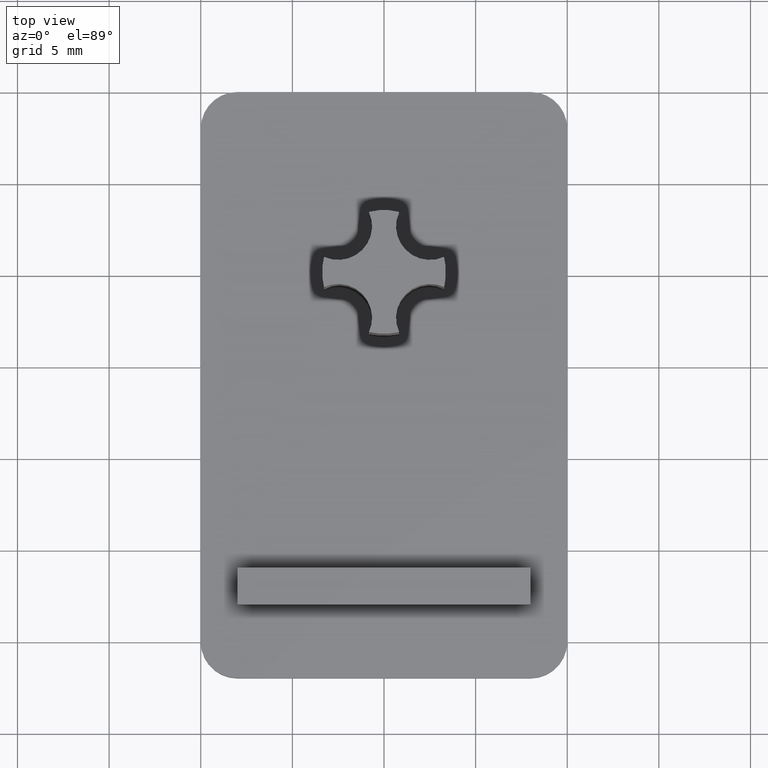
[diagram: clean part render]
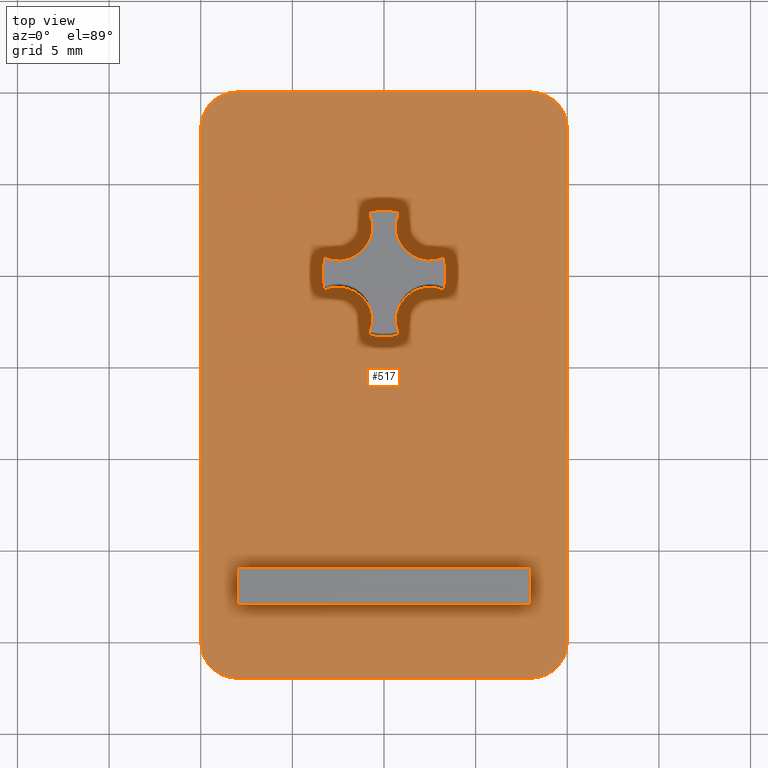
[diagram: same view with one face highlighted and labeled with its STEP entity id]
A machine part, top view. The second image highlights one B-rep face of the part: STEP entity #517.
In plain terms, the highlighted planar face has unit normal (0, 0, 1).
Its self-contained STEP definition (entity closure, byte-faithful):
#14=FACE_BOUND('',#95,.T.);
#15=FACE_BOUND('',#96,.T.);
#16=FACE_BOUND('',#97,.T.);
#28=PLANE('',#584);
#95=EDGE_LOOP('',(#450,#451,#452,#453));
#96=EDGE_LOOP('',(#454,#455,#456,#457,#458,#459,#460,#461));
#97=EDGE_LOOP('',(#462,#463,#464,#465,#466,#467,#468,#469));
#109=LINE('',#805,#149);
#112=LINE('',#813,#152);
#113=LINE('',#818,#153);
#117=LINE('',#826,#157);
#120=LINE('',#832,#160);
#123=LINE('',#837,#163);
#133=LINE('',#891,#173);
#136=LINE('',#899,#176);
#149=VECTOR('',#644,16.);
#152=VECTOR('',#653,28.);
#153=VECTOR('',#658,2.);
#157=VECTOR('',#664,16.);
#160=VECTOR('',#669,2.);
#163=VECTOR('',#674,16.);
#173=VECTOR('',#738,28.);
#176=VECTOR('',#747,16.);
#190=CIRCLE('',#542,2.);
#191=CIRCLE('',#545,2.);
#192=CIRCLE('',#554,3.37499999999998);
#194=CIRCLE('',#557,1.85);
#196=CIRCLE('',#560,3.375);
#198=CIRCLE('',#563,1.85);
#200=CIRCLE('',#566,1.85);
#202=CIRCLE('',#569,3.375);
#204=CIRCLE('',#572,1.85);
#206=CIRCLE('',#575,3.375);
#208=CIRCLE('',#580,2.);
#209=CIRCLE('',#583,2.);
#222=VERTEX_POINT('',#797);
#223=VERTEX_POINT('',#799);
#224=VERTEX_POINT('',#803);
#225=VERTEX_POINT('',#807);
#226=VERTEX_POINT('',#811);
#227=VERTEX_POINT('',#816);
#228=VERTEX_POINT('',#817);
#231=VERTEX_POINT('',#825);
#233=VERTEX_POINT('',#831);
#235=VERTEX_POINT('',#841);
#236=VERTEX_POINT('',#842);
#239=VERTEX_POINT('',#850);
#241=VERTEX_POINT('',#856);
#243=VERTEX_POINT('',#862);
#245=VERTEX_POINT('',#868);
#247=VERTEX_POINT('',#874);
#249=VERTEX_POINT('',#880);
#251=VERTEX_POINT('',#890);
#252=VERTEX_POINT('',#894);
#253=VERTEX_POINT('',#898);
#275=EDGE_CURVE('',#223,#222,#190,.T.);
#278=EDGE_CURVE('',#222,#224,#109,.T.);
#280=EDGE_CURVE('',#224,#225,#191,.T.);
#282=EDGE_CURVE('',#225,#226,#112,.T.);
#283=EDGE_CURVE('',#227,#228,#113,.T.);
#287=EDGE_CURVE('',#228,#231,#117,.T.);
#290=EDGE_CURVE('',#231,#233,#120,.T.);
#293=EDGE_CURVE('',#233,#227,#123,.T.);
#295=EDGE_CURVE('',#235,#236,#192,.T.);
#299=EDGE_CURVE('',#239,#235,#194,.T.);
#302=EDGE_CURVE('',#241,#239,#196,.T.);
#305=EDGE_CURVE('',#243,#241,#198,.T.);
#308=EDGE_CURVE('',#236,#245,#200,.T.);
#311=EDGE_CURVE('',#245,#247,#202,.T.);
#314=EDGE_CURVE('',#247,#249,#204,.T.);
#317=EDGE_CURVE('',#249,#243,#206,.T.);
#319=EDGE_CURVE('',#251,#223,#133,.T.);
#321=EDGE_CURVE('',#252,#251,#208,.T.);
#323=EDGE_CURVE('',#253,#252,#136,.T.);
#325=EDGE_CURVE('',#226,#253,#209,.T.);
#450=ORIENTED_EDGE('',*,*,#283,.T.);
#451=ORIENTED_EDGE('',*,*,#287,.T.);
#452=ORIENTED_EDGE('',*,*,#290,.T.);
#453=ORIENTED_EDGE('',*,*,#293,.T.);
#454=ORIENTED_EDGE('',*,*,#305,.T.);
#455=ORIENTED_EDGE('',*,*,#302,.T.);
#456=ORIENTED_EDGE('',*,*,#299,.T.);
#457=ORIENTED_EDGE('',*,*,#295,.T.);
#458=ORIENTED_EDGE('',*,*,#308,.T.);
#459=ORIENTED_EDGE('',*,*,#311,.T.);
#460=ORIENTED_EDGE('',*,*,#314,.T.);
#461=ORIENTED_EDGE('',*,*,#317,.T.);
#462=ORIENTED_EDGE('',*,*,#280,.T.);
#463=ORIENTED_EDGE('',*,*,#282,.T.);
#464=ORIENTED_EDGE('',*,*,#325,.T.);
#465=ORIENTED_EDGE('',*,*,#323,.T.);
#466=ORIENTED_EDGE('',*,*,#321,.T.);
#467=ORIENTED_EDGE('',*,*,#319,.T.);
#468=ORIENTED_EDGE('',*,*,#275,.T.);
#469=ORIENTED_EDGE('',*,*,#278,.T.);
#517=ADVANCED_FACE('',(#14,#15,#16),#28,.T.);
#542=AXIS2_PLACEMENT_3D('',#800,#638,#639);
#545=AXIS2_PLACEMENT_3D('',#809,#648,#649);
#554=AXIS2_PLACEMENT_3D('',#843,#680,#681);
#557=AXIS2_PLACEMENT_3D('',#851,#688,#689);
#560=AXIS2_PLACEMENT_3D('',#857,#695,#696);
#563=AXIS2_PLACEMENT_3D('',#863,#702,#703);
#566=AXIS2_PLACEMENT_3D('',#869,#709,#710);
#569=AXIS2_PLACEMENT_3D('',#875,#716,#717);
#572=AXIS2_PLACEMENT_3D('',#881,#723,#724);
#575=AXIS2_PLACEMENT_3D('',#886,#730,#731);
#580=AXIS2_PLACEMENT_3D('',#895,#742,#743);
#583=AXIS2_PLACEMENT_3D('',#902,#751,#752);
#584=AXIS2_PLACEMENT_3D('',#903,#753,#754);
#638=DIRECTION('center_axis',(0.,0.,1.));
#639=DIRECTION('ref_axis',(-1.,2.22044604925031E-015,0.));
#644=DIRECTION('',(1.,-1.38777878078145E-015,0.));
#648=DIRECTION('center_axis',(0.,0.,1.));
#649=DIRECTION('ref_axis',(-4.9960036108132E-015,-1.,0.));
#653=DIRECTION('',(1.26882631385732E-015,1.,0.));
#658=DIRECTION('',(0.,-1.,0.));
#664=DIRECTION('',(-1.,0.,0.));
#669=DIRECTION('',(-5.55111512312578E-016,1.,0.));
#674=DIRECTION('',(1.,0.,0.));
#680=DIRECTION('center_axis',(0.,0.,-1.));
#681=DIRECTION('ref_axis',(-0.243072963343275,-0.970008007436804,0.));
#688=DIRECTION('center_axis',(0.,0.,1.));
#689=DIRECTION('ref_axis',(-0.417478489460647,-0.908686805691409,0.));
#695=DIRECTION('center_axis',(0.,0.,-1.));
#696=DIRECTION('ref_axis',(0.970008008755765,-0.243072958079824,0.));
#702=DIRECTION('center_axis',(0.,0.,1.));
#703=DIRECTION('ref_axis',(0.908686805691408,-0.417478489460648,0.));
#709=DIRECTION('center_axis',(0.,0.,1.));
#710=DIRECTION('ref_axis',(-0.908686815897392,0.417478467246227,0.));
#716=DIRECTION('center_axis',(0.,0.,-1.));
#717=DIRECTION('ref_axis',(-0.970008008755765,0.243072958079824,0.));
#723=DIRECTION('center_axis',(0.,0.,1.));
#724=DIRECTION('ref_axis',(0.417478489460642,0.908686805691411,0.));
#730=DIRECTION('center_axis',(0.,0.,-1.));
#731=DIRECTION('ref_axis',(0.243072958079825,0.970008008755765,0.));
#738=DIRECTION('',(-5.55111512312578E-016,-1.,0.));
#742=DIRECTION('center_axis',(0.,0.,1.));
#743=DIRECTION('ref_axis',(1.11022302462516E-015,1.,0.));
#747=DIRECTION('',(-1.,1.38777878078145E-015,0.));
#751=DIRECTION('center_axis',(0.,0.,1.));
#752=DIRECTION('ref_axis',(1.,2.77555756156289E-015,0.));
#753=DIRECTION('center_axis',(0.,0.,1.));
#754=DIRECTION('ref_axis',(1.,0.,0.));
#797=CARTESIAN_POINT('',(-8.00000000000001,-22.,3.));
#799=CARTESIAN_POINT('',(-10.,-20.,3.));
#800=CARTESIAN_POINT('Origin',(-8.00000000000001,-20.,3.));
#803=CARTESIAN_POINT('',(7.99999999999997,-22.,3.));
#805=CARTESIAN_POINT('',(-8.00000000000001,-22.,3.));
#807=CARTESIAN_POINT('',(9.99999999999998,-20.,3.));
#809=CARTESIAN_POINT('Origin',(7.99999999999998,-20.,3.));
#811=CARTESIAN_POINT('',(10.,7.99999999999999,3.));
#813=CARTESIAN_POINT('',(9.99999999999998,-20.,3.));
#816=CARTESIAN_POINT('',(7.99999999999998,-16.,3.));
#817=CARTESIAN_POINT('',(7.99999999999998,-18.,3.));
#818=CARTESIAN_POINT('',(7.99999999999998,-12.,3.));
#825=CARTESIAN_POINT('',(-8.00000000000001,-18.,3.));
#826=CARTESIAN_POINT('',(-4.00000000000001,-18.,3.));
#831=CARTESIAN_POINT('',(-8.00000000000001,-16.,3.));
#832=CARTESIAN_POINT('',(-8.00000000000001,-11.,3.));
#837=CARTESIAN_POINT('',(3.99999999999999,-16.,3.));
#841=CARTESIAN_POINT('',(0.820371233519401,-3.27377702955071,3.));
#842=CARTESIAN_POINT('',(-0.820371251283517,-3.27377702509921,3.));
#843=CARTESIAN_POINT('Origin',(2.85882428840978E-014,-1.94289029309402E-014,
3.));
#850=CARTESIAN_POINT('',(3.27377702955071,-0.820371233519404,3.));
#851=CARTESIAN_POINT('Origin',(2.50144182404851,-2.50144182404851,3.));
#856=CARTESIAN_POINT('',(3.27377702955071,0.820371233519397,3.));
#857=CARTESIAN_POINT('Origin',(4.44089209850063E-015,5.55111512312578E-016,
3.));
#862=CARTESIAN_POINT('',(0.820371233519408,3.27377702955071,3.));
#863=CARTESIAN_POINT('Origin',(2.50144182404852,2.50144182404851,3.));
#868=CARTESIAN_POINT('',(-3.27377702509921,-0.82037125128351,3.));
#869=CARTESIAN_POINT('Origin',(-2.5014418606937,-2.50144186069369,3.));
#874=CARTESIAN_POINT('',(-3.27377702955069,0.820371233519401,3.));
#875=CARTESIAN_POINT('Origin',(-8.520040887589E-018,0.,3.));
#880=CARTESIAN_POINT('',(-0.820371233519397,3.27377702955071,3.));
#881=CARTESIAN_POINT('Origin',(-2.50144182404851,2.50144182404851,3.));
#886=CARTESIAN_POINT('Origin',(-8.520040887589E-018,0.,3.));
#890=CARTESIAN_POINT('',(-9.99999999999999,8.00000000000002,3.));
#891=CARTESIAN_POINT('',(-9.99999999999999,8.00000000000002,3.));
#894=CARTESIAN_POINT('',(-7.99999999999999,10.,3.));
#895=CARTESIAN_POINT('Origin',(-7.99999999999999,8.00000000000001,3.));
#898=CARTESIAN_POINT('',(8.00000000000001,9.99999999999999,3.));
#899=CARTESIAN_POINT('',(8.00000000000001,9.99999999999999,3.));
#902=CARTESIAN_POINT('Origin',(8.00000000000001,7.99999999999999,3.));
#903=CARTESIAN_POINT('Origin',(-2.21361369302045E-015,-5.99999999999999,
3.));